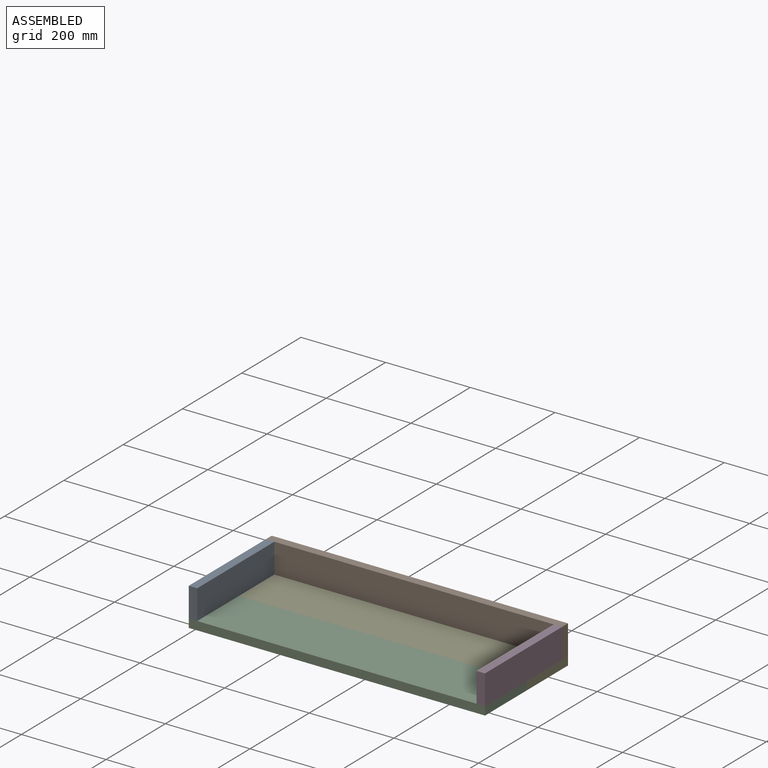
[diagram: assembled view]
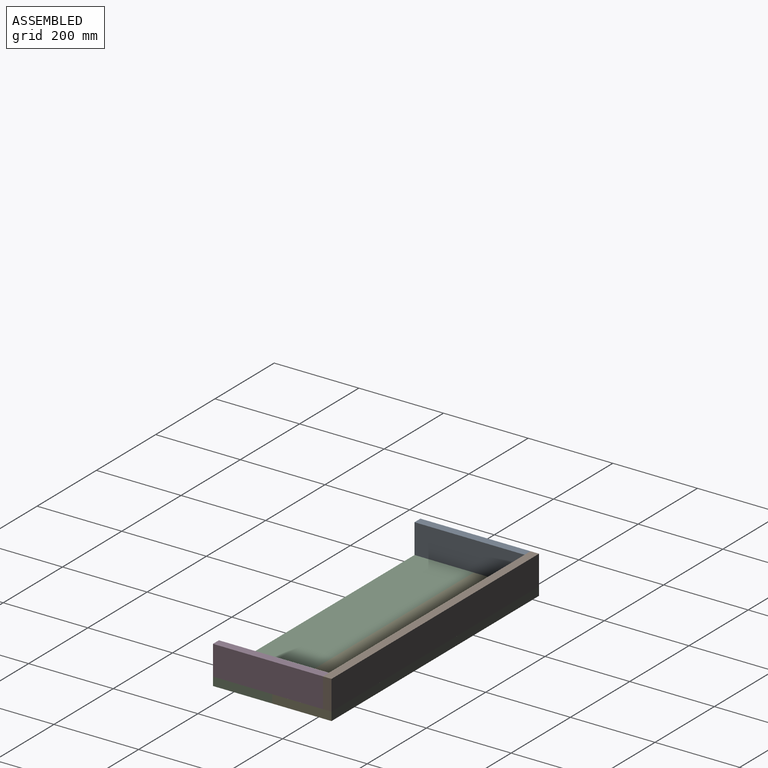
[diagram: assembled view, second angle]
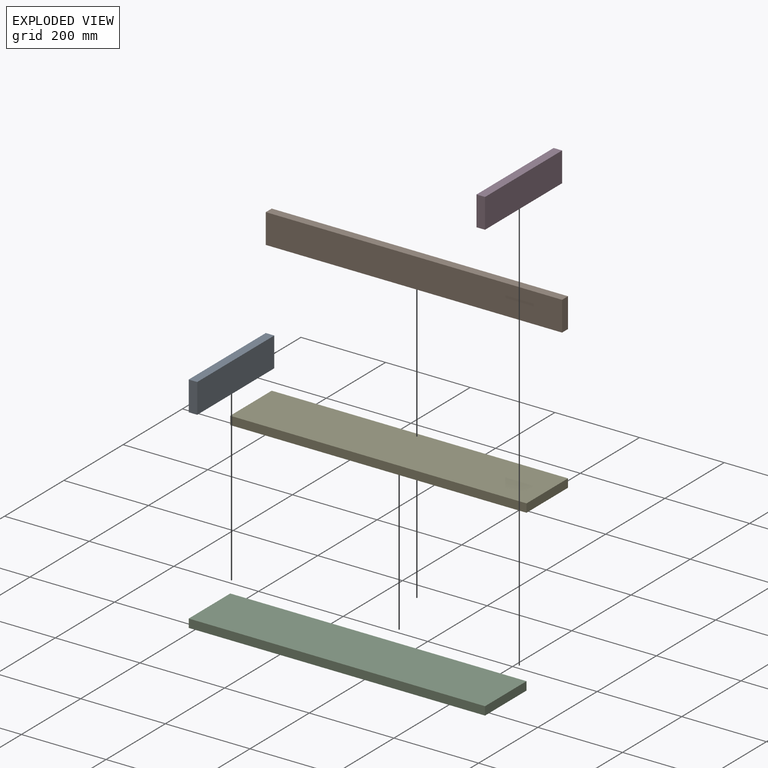
[diagram: exploded view]
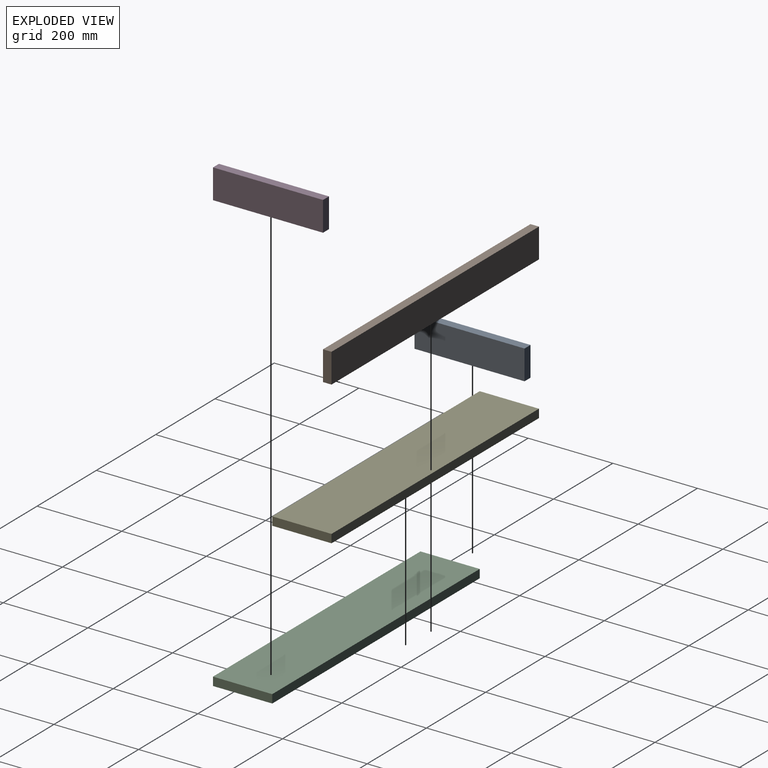
[diagram: exploded view, second angle]
ASSEMBLY  parts=5 mates=4
PART A: 6 faces, bbox 20x260x70 mm
  f0: plane 260x20mm, normal (0,0,-1), area 5200mm2, adj f1,f3,f4,f5
  f1: plane 70x20mm, normal (0,1,0), area 1400mm2, adj f0,f2,f4,f5
  f2: plane 260x20mm, normal (0,0,1), area 5200mm2, adj f1,f3,f4,f5
  f3: plane 70x20mm, normal (0,-1,0), area 1400mm2, adj f0,f2,f4,f5
  f4: plane 260x70mm, normal (1,0,0), area 18200mm2, adj f0,f1,f2,f3
  f5: plane 260x70mm, normal (-1,0,0), area 18200mm2, adj f0,f1,f2,f3
PART B: 6 faces, bbox 700x20x70 mm
  f0: plane 700x20mm, normal (0,0,-1), area 14000mm2, adj f1,f3,f4,f5
  f1: plane 70x20mm, normal (1,0,0), area 1400mm2, adj f0,f2,f4,f5
  f2: plane 700x20mm, normal (0,0,1), area 14000mm2, adj f1,f3,f4,f5
  f3: plane 70x20mm, normal (-1,0,0), area 1400mm2, adj f0,f2,f4,f5
  f4: plane 700x70mm, normal (0,-1,0), area 49000mm2, adj f0,f1,f2,f3
  f5: plane 700x70mm, normal (0,1,0), area 49000mm2, adj f0,f1,f2,f3
PART C: 6 faces, bbox 700x140x20 mm
  f0: plane 700x20mm, normal (0,1,0), area 14000mm2, adj f1,f3,f4,f5
  f1: plane 140x20mm, normal (-1,0,0), area 2800mm2, adj f0,f2,f4,f5
  f2: plane 700x20mm, normal (0,-1,0), area 14000mm2, adj f1,f3,f4,f5
  f3: plane 140x20mm, normal (1,0,0), area 2800mm2, adj f0,f2,f4,f5
  f4: plane 700x140mm, normal (0,0,1), area 98000mm2, adj f0,f1,f2,f3
  f5: plane 700x140mm, normal (0,0,-1), area 98000mm2, adj f0,f1,f2,f3
PART D: same geometry as A
PART E: same geometry as C
PLACE A t=(-1000.52,-504.63,112.23)mm
PLACE B t=(-647.7,-354.63,236.85)mm
PLACE C t=(-649.78,-454.46,57.23)mm
PLACE D t=(-320.52,-504.63,112.23)mm
PLACE E t=(-649.78,-314.46,57.23)mm
MATE fastened E.f4 <-> B.f0  axis (0,0,1) through (-650.52,-354.63,77.23)mm
MATE fastened C.f4 <-> A.f0  axis (0,0,1) through (-1000.52,-634.63,77.23)mm
MATE fastened E.f2 <-> C.f0  axis (0,-1,0) through (-650.52,-494.63,67.23)mm
MATE fastened C.f4 <-> D.f0  axis (0,0,1) through (-300.52,-634.63,77.23)mm
